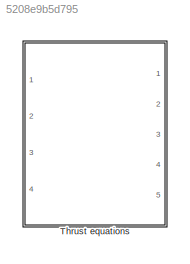
MODEL slx_5208e9b5d795
KIND model
CONFIG AbsTol = auto
CONFIG EnableMultiTasking = off
CONFIG FixedStep = auto
CONFIG MaxStep = auto
CONFIG MinStep = auto
CONFIG RelTol = 1e-3
CONFIG SampleTimeConstraint = Unconstrained
CONFIG SolverName = VariableStepAuto
CONFIG StartTime = 0.0
CONFIG StopTime = 10.0
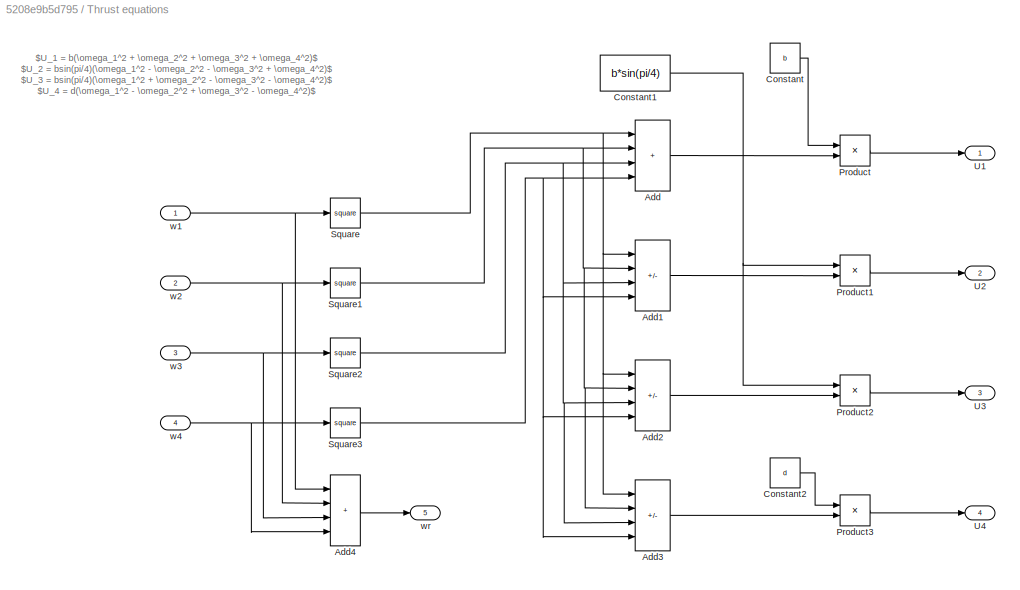
BLOCK [SubSystem] Thrust equations
  Ports = [4, 5]
  RequestExecContextInheritance = off
BLOCK [Sum] Thrust equations/Add
  IconShape = rectangular
  Inputs = ++++
  Ports = [4, 1]
BLOCK [Sum] Thrust equations/Add1
  IconShape = rectangular
  Inputs = +--+
  Ports = [4, 1]
BLOCK [Sum] Thrust equations/Add2
  IconShape = rectangular
  Inputs = ++--
  Ports = [4, 1]
BLOCK [Sum] Thrust equations/Add3
  IconShape = rectangular
  Inputs = +-+-
  Ports = [4, 1]
BLOCK [Sum] Thrust equations/Add4
  IconShape = rectangular
  Inputs = ++++
  Ports = [4, 1]
BLOCK [Constant] Thrust equations/Constant
  Value = b
BLOCK [Constant] Thrust equations/Constant1
  Value = b*sin(pi/4)
BLOCK [Constant] Thrust equations/Constant2
  Value = d
BLOCK [Product] Thrust equations/Product
  Ports = [2, 1]
BLOCK [Product] Thrust equations/Product1
  Ports = [2, 1]
BLOCK [Product] Thrust equations/Product2
  Ports = [2, 1]
BLOCK [Product] Thrust equations/Product3
  Ports = [2, 1]
BLOCK [Math] Thrust equations/Square
  Operator = square
  Ports = [1, 1]
BLOCK [Math] Thrust equations/Square1
  Operator = square
  Ports = [1, 1]
BLOCK [Math] Thrust equations/Square2
  Operator = square
  Ports = [1, 1]
BLOCK [Math] Thrust equations/Square3
  Operator = square
  Ports = [1, 1]
BLOCK [Outport] Thrust equations/U1
BLOCK [Outport] Thrust equations/U2
  Port = 2
BLOCK [Outport] Thrust equations/U3
  Port = 3
BLOCK [Outport] Thrust equations/U4
  Port = 4
BLOCK [Inport] Thrust equations/w1
BLOCK [Inport] Thrust equations/w2
  Port = 2
BLOCK [Inport] Thrust equations/w3
  Port = 3
BLOCK [Inport] Thrust equations/w4
  Port = 4
BLOCK [Outport] Thrust equations/wr
  Port = 5
ANNOTATION Thrust equations: $U_1 = b(\omega_1^2 + \omega_2^2 + \omega_3^2 + \omega_4^2)$ $U_2 = bsin(pi/4)(\omega_1^2 - \omega_2^2 - \omega_3^2 + \omega_4^2)$ $U_3 = bsin(pi/4)(\omega_1^2 + \omega_2^2 - \omega_3^2 - \omega_4^2)$ $U_4 = d(\omega_1^2 - \omega_2^2 + \omega_3^2 - \omega_4^2)$
LINE Thrust equations/Add1:1 -> Thrust equations/Product1:2
LINE Thrust equations/Add2:1 -> Thrust equations/Product2:2
LINE Thrust equations/Add3:1 -> Thrust equations/Product3:2
LINE Thrust equations/Add4:1 -> Thrust equations/wr:1
LINE Thrust equations/Add:1 -> Thrust equations/Product:2
NET Thrust equations/Constant1:1 -> Thrust equations/Product1:1, Thrust equations/Product2:1
LINE Thrust equations/Constant2:1 -> Thrust equations/Product3:1
LINE Thrust equations/Constant:1 -> Thrust equations/Product:1
LINE Thrust equations/Product1:1 -> Thrust equations/U2:1
LINE Thrust equations/Product2:1 -> Thrust equations/U3:1
LINE Thrust equations/Product3:1 -> Thrust equations/U4:1
LINE Thrust equations/Product:1 -> Thrust equations/U1:1
NET Thrust equations/Square1:1 -> Thrust equations/Add1:2, Thrust equations/Add2:2, Thrust equations/Add3:2, Thrust equations/Add:2
NET Thrust equations/Square2:1 -> Thrust equations/Add1:3, Thrust equations/Add2:3, Thrust equations/Add3:3, Thrust equations/Add:3
NET Thrust equations/Square3:1 -> Thrust equations/Add1:4, Thrust equations/Add2:4, Thrust equations/Add3:4, Thrust equations/Add:4
NET Thrust equations/Square:1 -> Thrust equations/Add1:1, Thrust equations/Add2:1, Thrust equations/Add3:1, Thrust equations/Add:1
NET Thrust equations/w1:1 -> Thrust equations/Add4:1, Thrust equations/Square:1
NET Thrust equations/w2:1 -> Thrust equations/Add4:2, Thrust equations/Square1:1
NET Thrust equations/w3:1 -> Thrust equations/Add4:3, Thrust equations/Square2:1
NET Thrust equations/w4:1 -> Thrust equations/Add4:4, Thrust equations/Square3:1
note: NET lines group one-source signal fan-out (src -> all destinations, sorted); 1:1 wires keep LINE
